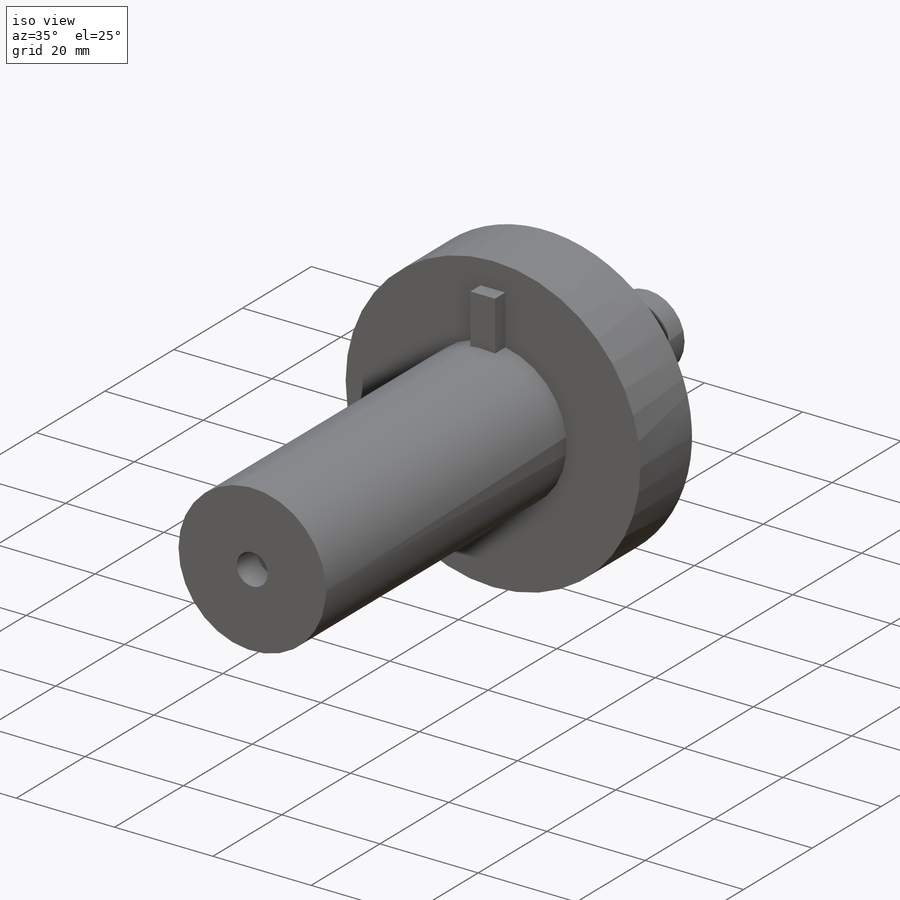
[diagram: iso view]
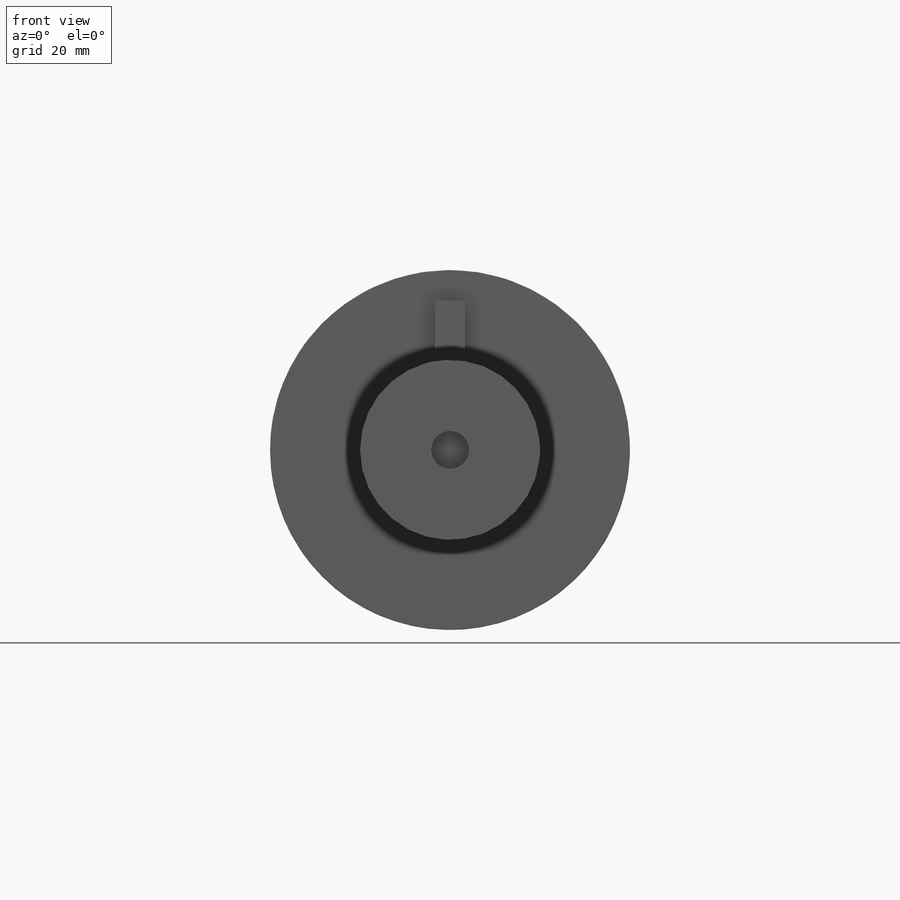
[diagram: front view]
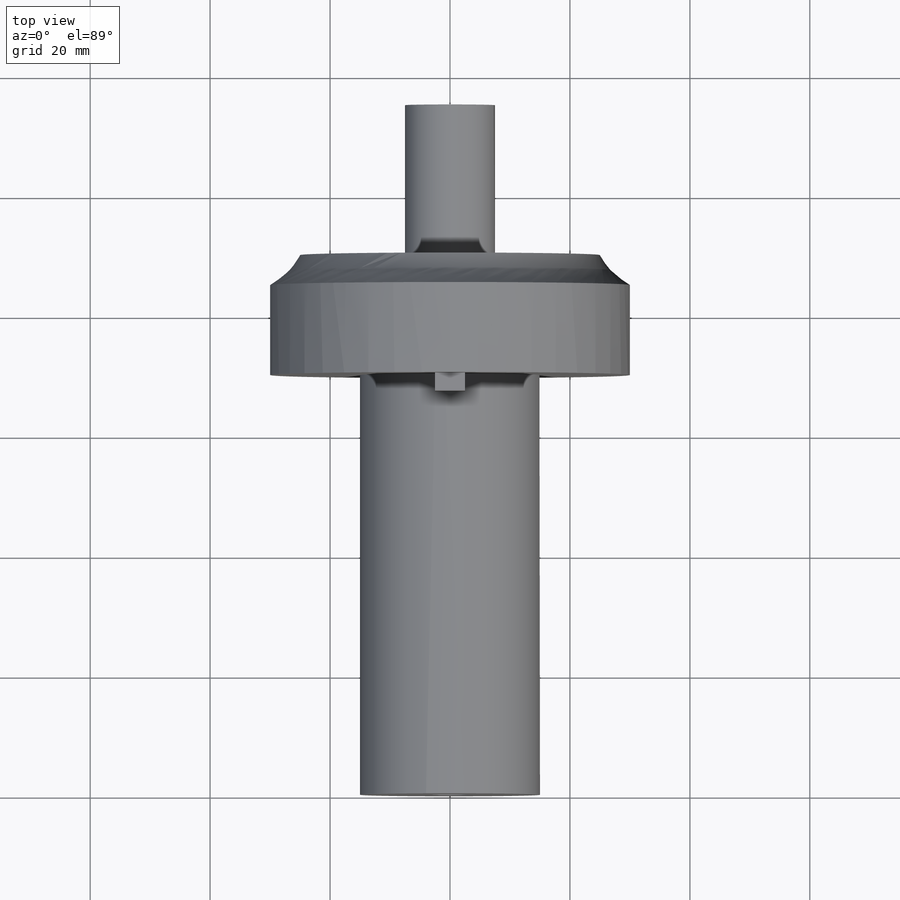
[diagram: top view]
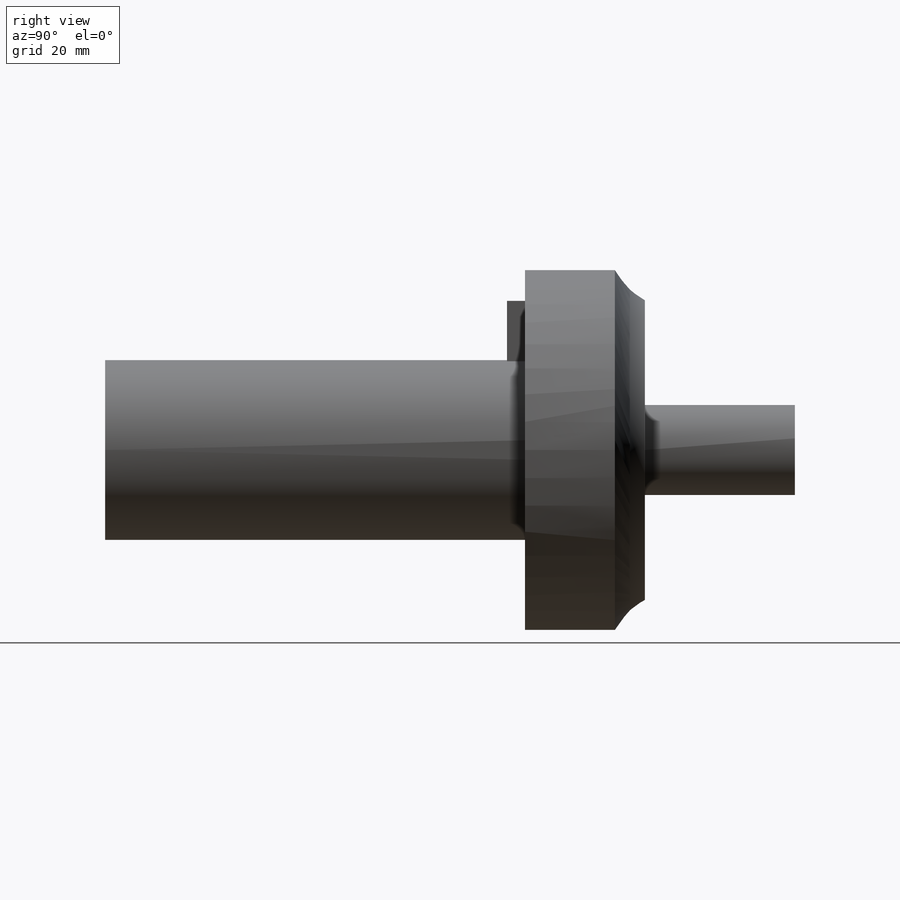
[diagram: right view]
SOLIDWORKS PART (.sldprt)
format: sldprt  version: not decoded by parser v0  size: 198,144 bytes
history: native  units: mm
features: sketch x7, extrude x5, plane x2, material x1, cut_extrude x1 (+13 scaffold rows collapsed)
feature tree (29):
  scaffold x13  (default folders/planes/origin — collapsed)
  material  "Material <not specified>"
  sketch  "Sketch1"  dims[D1=30.0mm D2=30.0mm]
  extrude  "Boss-Extrude1"  Depth=80mm
  plane  "Plane1"  Offset=10mm
  sketch  "Sketch2"  dims[D1=50.0mm]
  sketch  "Sketch1<2>"
  sketch  "Sketch3"  dims[D1=15.0mm]
  extrude  "Boss-Extrude2"  Depth=25mm
  plane  "Plane2"  Offset=70mm
  sketch  "Sketch4"  dims[D1=2.5mm D2=5.0mm D3=25.0mm]
  extrude  "Boss-Extrude3"  Depth=3mm
  sketch  "Sketch5"  dims[D1=6.3mm]
  cut_extrude  "Cut-Extrude1"  Depth=6mm
  sketch  "Sketch6"  dims[D1=60.0mm D2=20.0mm]
  extrude  "Boss-Extrude4"  Depth=15mm
  extrude  "Loft3"  [1 undecoded]
decode coverage: 11 of 13 modeling features carry decoded parameters
note: 1 parameter value undecoded
note: suppression state not decoded; provenance and decode notes live in map.json
